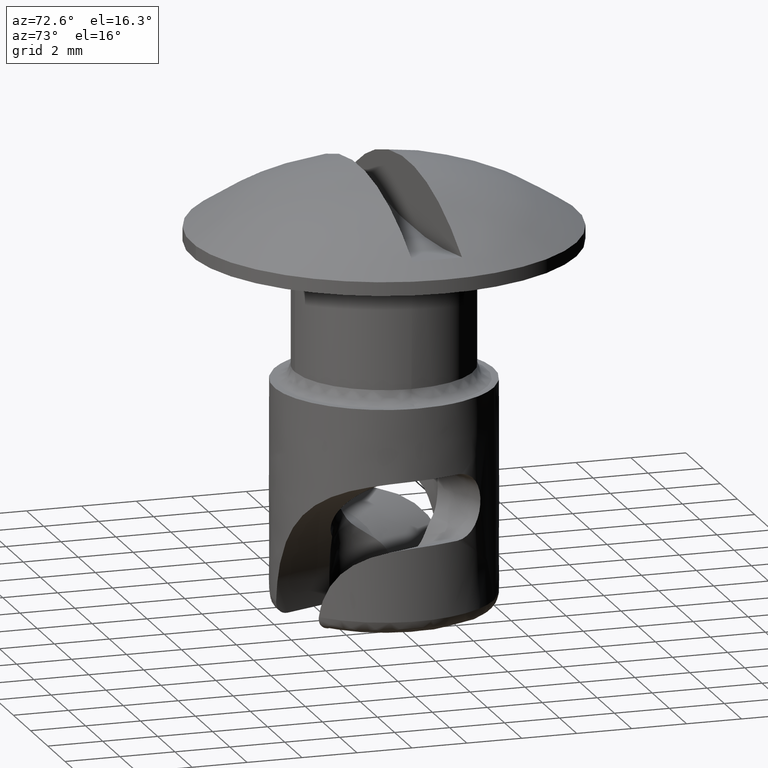
[diagram: clean part render]
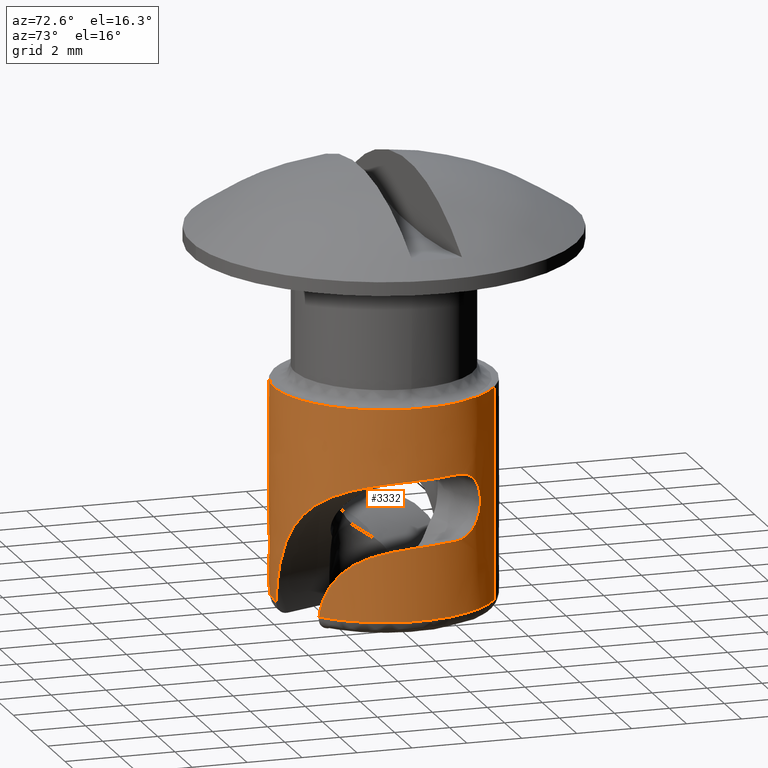
[diagram: same view with one face highlighted and labeled with its STEP entity id]
A machine part, auxiliary view. The second image highlights one B-rep face of the part: STEP entity #3332.
In plain terms, the highlighted face is a freeform B-spline surface patch.
Its self-contained STEP definition (entity closure, byte-faithful):
#891=CARTESIAN_POINT('',(4.0,0.0,-4.999992000000230));
#892=VERTEX_POINT('',#891);
#893=CARTESIAN_POINT('',(2.259197574240169,3.300912952585230,-4.999992000000231));
#894=VERTEX_POINT('',#893);
#895=CARTESIAN_POINT('',(4.0,0.0,-4.999992000000230));
#896=CARTESIAN_POINT('',(3.999999999999916,2.109479953897067,-4.999992000000231));
#897=CARTESIAN_POINT('',(2.259197574240169,3.300912952585230,-4.999992000000231));
#905=(BOUNDED_CURVE()B_SPLINE_CURVE(2,(#895,#896,#897),.UNSPECIFIED.,.F.,.U.)B_SPLINE_CURVE_WITH_KNOTS((3,3),(0.0,0.153025890299699),.UNSPECIFIED.)CURVE()GEOMETRIC_REPRESENTATION_ITEM()RATIONAL_B_SPLINE_CURVE((1.0,0.820719017713307,0.860915090852421))REPRESENTATION_ITEM(''));
#906=EDGE_CURVE('',#892,#894,#905,.T.);
#925=CARTESIAN_POINT('',(-2.259197574405651,-3.300912952471971,-4.999992000000231));
#926=VERTEX_POINT('',#925);
#940=CARTESIAN_POINT('',(-2.259197574405651,-3.300912952471971,-4.999992000000231));
#941=CARTESIAN_POINT('',(-1.237761682196489,-3.999999999999774,-4.999992000000232));
#942=CARTESIAN_POINT('',(1.295531E-013,-3.999999999999812,-4.999992000000232));
#943=CARTESIAN_POINT('',(4.000000000000044,-3.999999999999936,-4.999992000000232));
#944=CARTESIAN_POINT('',(4.0,0.0,-4.999992000000230));
#952=(BOUNDED_CURVE()B_SPLINE_CURVE(2,(#940,#941,#942,#943,#944),.UNSPECIFIED.,.F.,.U.)B_SPLINE_CURVE_WITH_KNOTS((3,2,3),(0.653025890292069,0.750000000000000,1.0),.UNSPECIFIED.)CURVE()GEOMETRIC_REPRESENTATION_ITEM()RATIONAL_B_SPLINE_CURVE((0.860915090848412,0.886387763464301,1.0,0.707106781186548,1.0))REPRESENTATION_ITEM(''));
#953=EDGE_CURVE('',#926,#892,#952,.T.);
#1429=CARTESIAN_POINT('',(3.708735643719140,1.498425815652672,-10.000000000003000));
#1430=VERTEX_POINT('',#1429);
#2134=CARTESIAN_POINT('',(2.468781606039280,-3.147239644781140,-12.699992000000160));
#2135=VERTEX_POINT('',#2134);
#2136=CARTESIAN_POINT('',(3.708735643719140,1.498425815652672,-10.000000000003000));
#2137=CARTESIAN_POINT('',(3.810090958870764,1.247562498924028,-9.999999999999959));
#2138=CARTESIAN_POINT('',(3.884534013940237,0.990773260347813,-10.001989005608980));
#2139=CARTESIAN_POINT('',(3.957431423748062,0.597114365973022,-10.010854007396761));
#2140=CARTESIAN_POINT('',(3.975219266481579,0.464472409151723,-10.014852633452950));
#2141=CARTESIAN_POINT('',(3.991888873922461,0.263341844608409,-10.023411577499710));
#2142=CARTESIAN_POINT('',(3.995774987931119,0.195736937058382,-10.026708973333671));
#2143=CARTESIAN_POINT('',(4.000098380150634,0.061185388952164,-10.034313639172019));
#2144=CARTESIAN_POINT('',(4.000552922773697,-0.005834224472927,-10.038621180587270));
#2145=CARTESIAN_POINT('',(3.994494771487647,-0.339610273644319,-10.063199871098769));
#2146=CARTESIAN_POINT('',(3.963160964590875,-0.602465402867068,-10.092231149312370));
#2147=CARTESIAN_POINT('',(3.892244392910703,-0.924545387156610,-10.151712658925280));
#2148=CARTESIAN_POINT('',(3.876463512499087,-0.988632693985074,-10.164793391147111));
#2149=CARTESIAN_POINT('',(3.841703696563864,-1.116098864420396,-10.193729502408390));
#2150=CARTESIAN_POINT('',(3.822759539488335,-1.179300871714242,-10.209558206818841));
#2151=CARTESIAN_POINT('',(3.762135803825180,-1.365026873242748,-10.261026305331640));
#2152=CARTESIAN_POINT('',(3.716439603513253,-1.484531998927820,-10.300822789177570));
#2153=CARTESIAN_POINT('',(3.616038741455106,-1.714649352695221,-10.393747744094350));
#2154=CARTESIAN_POINT('',(3.561327725681835,-1.825262215269176,-10.446867744072110));
#2155=CARTESIAN_POINT('',(3.473709976626768,-1.984187070145883,-10.538682419504839));
#2156=CARTESIAN_POINT('',(3.443778442466749,-2.035621141561661,-10.571116458527420));
#2157=CARTESIAN_POINT('',(3.383315620142910,-2.134605070561877,-10.639214097439520));
#2158=CARTESIAN_POINT('',(3.352704786899967,-2.182299978619820,-10.674960163162730));
#2159=CARTESIAN_POINT('',(3.260219866616383,-2.320176019284362,-10.787463364764999));
#2160=CARTESIAN_POINT('',(3.197691955991919,-2.405156493261610,-10.869475532748540));
#2161=CARTESIAN_POINT('',(3.104503275320062,-2.522808418043429,-11.003835034144050));
#2162=CARTESIAN_POINT('',(3.073540876573491,-2.560387302447294,-11.050513885296350));
#2163=CARTESIAN_POINT('',(3.012145538220081,-2.632340387389576,-11.147830150644291));
#2164=CARTESIAN_POINT('',(2.982023100929445,-2.666350250954843,-11.197984765034001));
#2165=CARTESIAN_POINT('',(2.894146360982890,-2.762509471872198,-11.352250067694611));
#2166=CARTESIAN_POINT('',(2.838713494502881,-2.819012463386957,-11.460418501357649));
#2167=CARTESIAN_POINT('',(2.761690907903704,-2.893846008749102,-11.630600571960370));
#2168=CARTESIAN_POINT('',(2.737037230131211,-2.917130702887337,-11.688652361414199));
#2169=CARTESIAN_POINT('',(2.690008017475713,-2.960554205342078,-11.807433704027311));
#2170=CARTESIAN_POINT('',(2.667561133932267,-2.980754471376142,-11.868388787778670));
#2171=CARTESIAN_POINT('',(2.604753430960586,-3.036178198241654,-12.053081659258231));
#2172=CARTESIAN_POINT('',(2.568768672016629,-3.066416776179763,-12.178873449431290));
#2173=CARTESIAN_POINT('',(2.509227545560911,-3.115326862492778,-12.435575624183050));
#2174=CARTESIAN_POINT('',(2.485666534758483,-3.133994640858299,-12.566485656691439));
#2175=CARTESIAN_POINT('',(2.468781606039280,-3.147239644781140,-12.699992000000160));
#2176=B_SPLINE_CURVE_WITH_KNOTS('',3,(#2136,#2137,#2138,#2139,#2140,#2141,#2142,#2143,#2144,#2145,#2146,#2147,#2148,#2149,#2150,#2151,#2152,#2153,#2154,#2155,#2156,#2157,#2158,#2159,#2160,#2161,#2162,#2163,#2164,#2165,#2166,#2167,#2168,#2169,#2170,#2171,#2172,#2173,#2174,#2175),.UNSPECIFIED.,.F.,.U.,(4,2,2,2,2,2,2,2,2,2,2,2,2,2,2,2,2,2,2,4),(0.0,0.125000000000000,0.187500000000000,0.218750000000000,0.250000000000000,0.375000000000001,0.406250000000000,0.437500000000000,0.500000000000001,0.562500000000001,0.593750000000001,0.625000000000001,0.687500000000001,0.718750000000001,0.750000000000002,0.812500000000001,0.843750000000001,0.875000000000001,0.937500000000000,1.0),.UNSPECIFIED.);
#2177=EDGE_CURVE('',#1430,#2135,#2176,.T.);
#2754=CARTESIAN_POINT('',(3.708735643717875,1.498425815653404,-7.600000000000000));
#2755=VERTEX_POINT('',#2754);
#2756=CARTESIAN_POINT('',(3.708735643719140,1.498425815652672,-10.000000000003000));
#2757=CARTESIAN_POINT('',(3.693980332764582,1.534946507632162,-9.999999999999545));
#2758=CARTESIAN_POINT('',(3.678605449735882,1.571443497108849,-9.998060004204000));
#2759=CARTESIAN_POINT('',(3.646725625274037,1.644069625472710,-9.990184061265461));
#2760=CARTESIAN_POINT('',(3.630460214853705,1.679657963704901,-9.984312736830516));
#2761=CARTESIAN_POINT('',(3.580785661125524,1.784360679842895,-9.961115904495424));
#2762=CARTESIAN_POINT('',(3.546492992665188,1.851425869439605,-9.938261317992376));
#2763=CARTESIAN_POINT('',(3.493745136881018,1.948099713255431,-9.892742532923032));
#2764=CARTESIAN_POINT('',(3.476008292158629,1.979540920869979,-9.875716160736429));
#2765=CARTESIAN_POINT('',(3.440969522412821,2.039839368769486,-9.838640247142719));
#2766=CARTESIAN_POINT('',(3.406185018755823,2.097888119400641,-9.798390899087702));
#2767=CARTESIAN_POINT('',(3.372144950699159,2.151647418722550,-9.751882076158708));
#2768=CARTESIAN_POINT('',(3.338619872972860,2.203307860198963,-9.702189254878659));
#2769=CARTESIAN_POINT('',(3.322039984462922,2.228194726983983,-9.675607884540233));
#2770=CARTESIAN_POINT('',(3.274234720697460,2.298389129948204,-9.592494346216469));
#2771=CARTESIAN_POINT('',(3.244711567903310,2.339627016936406,-9.532392079923566));
#2772=CARTESIAN_POINT('',(3.191487183096997,2.411724963050376,-9.402758036293337));
#2773=CARTESIAN_POINT('',(3.167665745887051,2.442717719060330,-9.332510609649090));
#2774=CARTESIAN_POINT('',(3.129122526322118,2.491900549370058,-9.187930240633563));
#2775=CARTESIAN_POINT('',(3.114111099204581,2.510493086913676,-9.113106655318473));
#2776=CARTESIAN_POINT('',(3.098753066007345,2.529386349564358,-8.996907638080797));
#2777=CARTESIAN_POINT('',(3.094832176459688,2.534172527735672,-8.957324867691805));
#2778=CARTESIAN_POINT('',(3.089663145777002,2.540472051885772,-8.878589447126707));
#2779=CARTESIAN_POINT('',(3.087096383195576,2.543585588401966,-8.799927749917881));
#2780=CARTESIAN_POINT('',(3.089666338298439,2.540468136988272,-8.721410773289573));
#2781=CARTESIAN_POINT('',(3.094809839269400,2.534199774254679,-8.642966707535637));
#2782=CARTESIAN_POINT('',(3.098690236980813,2.529463423918883,-8.603621911833006));
#2783=CARTESIAN_POINT('',(3.114110045358946,2.510494814966794,-8.486793612842371));
#2784=CARTESIAN_POINT('',(3.129186956931753,2.491820083517486,-8.411773137369801));
#2785=CARTESIAN_POINT('',(3.158125759642797,2.454890276847694,-8.303302705170689));
#2786=CARTESIAN_POINT('',(3.168831734382461,2.441081575336332,-8.267827589531647));
#2787=CARTESIAN_POINT('',(3.192281513021277,2.410334532777311,-8.198260596250798));
#2788=CARTESIAN_POINT('',(3.204919492123242,2.393531891863615,-8.164503663049294));
#2789=CARTESIAN_POINT('',(3.244911173185314,2.339351822899808,-8.067166908508639));
#2790=CARTESIAN_POINT('',(3.274469571402577,2.298055152406835,-8.007052296822421));
#2791=CARTESIAN_POINT('',(3.322288534992269,2.227824275993412,-7.923982773170082));
#2792=CARTESIAN_POINT('',(3.338875886487748,2.202920023704376,-7.897411074326966));
#2793=CARTESIAN_POINT('',(3.372406018221561,2.151238356032557,-7.847751460844281));
#2794=CARTESIAN_POINT('',(3.389419155863508,2.124361892889728,-7.824526641371428));
#2795=CARTESIAN_POINT('',(3.440987162825300,2.040566100235266,-7.759571072650771));
#2796=CARTESIAN_POINT('',(3.476123070176079,1.980401778936991,-7.722456112077880));
#2797=CARTESIAN_POINT('',(3.546660964345536,1.851112856905231,-7.661602071041023));
#2798=CARTESIAN_POINT('',(3.580949678573107,1.784022479467329,-7.638797553949281));
#2799=CARTESIAN_POINT('',(3.630485784679586,1.679600300423470,-7.615680313536404));
#2800=CARTESIAN_POINT('',(3.646682940823901,1.644158857251184,-7.609836626266411));
#2801=CARTESIAN_POINT('',(3.678386688849846,1.571949803924034,-7.601983981890302));
#2802=CARTESIAN_POINT('',(3.693922479155233,1.535089700403719,-7.599999999998460));
#2803=CARTESIAN_POINT('',(3.708735643717875,1.498425815653404,-7.600000000000000));
#2804=B_SPLINE_CURVE_WITH_KNOTS('',3,(#2756,#2757,#2758,#2759,#2760,#2761,#2762,#2763,#2764,#2765,#2766,#2767,#2768,#2769,#2770,#2771,#2772,#2773,#2774,#2775,#2776,#2777,#2778,#2779,#2780,#2781,#2782,#2783,#2784,#2785,#2786,#2787,#2788,#2789,#2790,#2791,#2792,#2793,#2794,#2795,#2796,#2797,#2798,#2799,#2800,#2801,#2802,#2803),.UNSPECIFIED.,.F.,.U.,(4,2,2,2,2,1,2,2,2,2,2,2,1,2,2,2,2,2,2,2,2,2,2,2,4),(0.0,0.031250000000000,0.062500000000001,0.125000000000002,0.156250000000002,0.187500000000003,0.218750000000003,0.250000000000004,0.312500000000004,0.375000000000004,0.437500000000004,0.468750000000004,0.500000000000003,0.531250000000002,0.562500000000002,0.625000000000002,0.656250000000002,0.687500000000002,0.750000000000002,0.781250000000002,0.812500000000002,0.875000000000001,0.937500000000001,0.968750000000000,1.0),.UNSPECIFIED.);
#2805=EDGE_CURVE('',#1430,#2755,#2804,.T.);
#2936=CARTESIAN_POINT('',(2.259198848327368,3.300912080579591,-12.699992000000160));
#2937=VERTEX_POINT('',#2936);
#2951=CARTESIAN_POINT('',(2.468781606039278,-3.147239644781141,-12.699992000000160));
#2952=CARTESIAN_POINT('',(4.772995447202774,-1.339750737198722,-12.699992000000160));
#2953=CARTESIAN_POINT('',(3.745950619800008,1.402802179218416,-12.699992000000160));
#2954=CARTESIAN_POINT('',(3.302552379646656,2.586823659314840,-12.699992000000160));
#2955=CARTESIAN_POINT('',(2.259198848327369,3.300912080579591,-12.699992000000160));
#2963=(BOUNDED_CURVE()B_SPLINE_CURVE(2,(#2951,#2952,#2953,#2954,#2955),.UNSPECIFIED.,.F.,.U.)B_SPLINE_CURVE_WITH_KNOTS((3,2,3),(0.0,0.500000000000000,0.742473774957260),.UNSPECIFIED.)CURVE()GEOMETRIC_REPRESENTATION_ITEM()RATIONAL_B_SPLINE_CURVE((1.0,0.806864675671208,1.0,0.906339497664806,0.903519857592043))REPRESENTATION_ITEM(''));
#2964=EDGE_CURVE('',#2135,#2937,#2963,.T.);
#3222=CARTESIAN_POINT('',(-2.259198850649106,-3.300912078990555,-12.892492000000161));
#3223=CARTESIAN_POINT('',(1.041713228341449,-5.560110929639662,-12.892492000000159));
#3224=CARTESIAN_POINT('',(3.300912078990555,-2.259198850649106,-12.892492000000161));
#3225=CARTESIAN_POINT('',(5.560110929639662,1.041713228341449,-12.892492000000159));
#3226=CARTESIAN_POINT('',(2.259198850649106,3.300912078990555,-12.892492000000161));
#3227=CARTESIAN_POINT('',(-2.259198850649106,-3.300912078990555,-4.802679500000230));
#3228=CARTESIAN_POINT('',(1.041713228341449,-5.560110929639662,-4.802679500000229));
#3229=CARTESIAN_POINT('',(3.300912078990555,-2.259198850649106,-4.802679500000230));
#3230=CARTESIAN_POINT('',(5.560110929639662,1.041713228341449,-4.802679500000229));
#3231=CARTESIAN_POINT('',(2.259198850649106,3.300912078990555,-4.802679500000230));
#3239=(BOUNDED_SURFACE()B_SPLINE_SURFACE(2,1,((#3222,#3227),(#3223,#3228),(#3224,#3229),(#3225,#3230),(#3226,#3231)),.UNSPECIFIED.,.F.,.F.,.U.)B_SPLINE_SURFACE_WITH_KNOTS((3,2,3),(2,2),(0.0,6.627416997969519,13.254833995939039),(0.0,8.089812499999930),.UNSPECIFIED.)GEOMETRIC_REPRESENTATION_ITEM()RATIONAL_B_SPLINE_SURFACE(((1.0,1.0),(0.707106781186548,0.707106781186548),(1.0,1.0),(0.707106781186548,0.707106781186548),(1.0,1.0)))REPRESENTATION_ITEM('')SURFACE());
#3240=ORIENTED_EDGE('',*,*,#953,.F.);
#3241=CARTESIAN_POINT('',(-2.259198863893974,-3.300912069925549,-12.699992000000160));
#3242=VERTEX_POINT('',#3241);
#3243=CARTESIAN_POINT('',(-2.259198863893974,-3.300912069925549,-12.699992000000160));
#3244=CARTESIAN_POINT('',(-2.259197574405651,-3.300912952471971,-4.999992000000231));
#3245=QUASI_UNIFORM_CURVE('',1,(#3243,#3244),.UNSPECIFIED.,.F.,.U.);
#3246=EDGE_CURVE('',#3242,#926,#3245,.T.);
#3247=ORIENTED_EDGE('',*,*,#3246,.F.);
#3248=CARTESIAN_POINT('',(0.205768854712659,-3.994703891207740,-12.699992000000160));
#3249=VERTEX_POINT('',#3248);
#3250=CARTESIAN_POINT('',(-2.259198863893975,-3.300912069925549,-12.699992000000162));
#3251=CARTESIAN_POINT('',(-1.143920628626017,-4.064226956438076,-12.699992000000160));
#3252=CARTESIAN_POINT('',(0.205768854712658,-3.994703891207737,-12.699992000000160));
#3260=(BOUNDED_CURVE()B_SPLINE_CURVE(2,(#3250,#3251,#3252),.UNSPECIFIED.,.F.,.U.)B_SPLINE_CURVE_WITH_KNOTS((3,3),(0.742473773154059,1.0),.UNSPECIFIED.)CURVE()GEOMETRIC_REPRESENTATION_ITEM()RATIONAL_B_SPLINE_CURVE((0.903519857633981,0.900525177309878,1.0))REPRESENTATION_ITEM(''));
#3261=EDGE_CURVE('',#3242,#3249,#3260,.T.);
#3262=ORIENTED_EDGE('',*,*,#3261,.T.);
#3263=CARTESIAN_POINT('',(3.708735643717875,1.498425815653404,-7.600000000000000));
#3264=CARTESIAN_POINT('',(3.789816242015302,1.297744205807735,-7.599999999999970));
#3265=CARTESIAN_POINT('',(3.853610974872032,1.093263577412488,-7.600772875729547));
#3266=CARTESIAN_POINT('',(3.948059474699816,0.677029674079290,-7.604736595366661));
#3267=CARTESIAN_POINT('',(3.978711172169416,0.465275843627494,-7.607918917681144));
#3268=CARTESIAN_POINT('',(3.995564957132692,0.195894578718415,-7.615217662911019));
#3269=CARTESIAN_POINT('',(3.997848564085063,0.141795779559010,-7.616849857873356));
#3270=CARTESIAN_POINT('',(4.000216753743072,0.034133671513432,-7.620487619688186));
#3271=CARTESIAN_POINT('',(4.000310720402404,-0.019555583718766,-7.622496360478704));
#3272=CARTESIAN_POINT('',(3.997374375231631,-0.180197743397610,-7.629181404475868));
#3273=CARTESIAN_POINT('',(3.991130562209952,-0.286725832207317,-7.634513265878188));
#3274=CARTESIAN_POINT('',(3.959775703180690,-0.604579068728949,-7.653959452422089));
#3275=CARTESIAN_POINT('',(3.922112906822729,-0.814186815777883,-7.671451332132992));
#3276=CARTESIAN_POINT('',(3.853761044358152,-1.073029672022521,-7.702641931695323));
#3277=CARTESIAN_POINT('',(3.838978122430332,-1.124771750286358,-7.709371911327249));
#3278=CARTESIAN_POINT('',(3.807509609817085,-1.227083976707175,-7.723770845920249));
#3279=CARTESIAN_POINT('',(3.757456182568843,-1.378856449089958,-7.746776668644611));
#3280=CARTESIAN_POINT('',(3.699122988859857,-1.525589463259218,-7.774337358302792));
#3281=CARTESIAN_POINT('',(3.571982284881069,-1.812368324864488,-7.836501287930684));
#3282=CARTESIAN_POINT('',(3.473289894623778,-1.994666556306956,-7.887282724575035));
#3283=CARTESIAN_POINT('',(3.333735905731934,-2.211076038045203,-7.966273291350484));
#3284=CARTESIAN_POINT('',(3.304936856167119,-2.253889410775154,-7.982896306513405));
#3285=CARTESIAN_POINT('',(3.246122206245276,-2.337801471763046,-8.017586295371046));
#3286=CARTESIAN_POINT('',(3.156252307149330,-2.460874529570284,-8.071677189101809));
#3287=CARTESIAN_POINT('',(3.061826482051081,-2.575801728123307,-8.132117061349236));
#3288=CARTESIAN_POINT('',(2.867818098297072,-2.795310921927876,-8.261970828628712));
#3289=CARTESIAN_POINT('',(2.731615405252652,-2.927880516877460,-8.360484840940163));
#3290=CARTESIAN_POINT('',(2.555468277276900,-3.077615931860113,-8.500482646460059));
#3291=CARTESIAN_POINT('',(2.519980797999549,-3.106724907485757,-8.529300169703664));
#3292=CARTESIAN_POINT('',(2.449137228549457,-3.162873647304286,-8.588113109815474));
#3293=CARTESIAN_POINT('',(2.342830668632973,-3.244196303757057,-8.678286934049607));
#3294=CARTESIAN_POINT('',(2.236691472767790,-3.317262990057821,-8.774323978974886));
#3295=CARTESIAN_POINT('',(2.095796109974275,-3.408028925196530,-8.907615685544689));
#3296=CARTESIAN_POINT('',(2.025659446669304,-3.450082715466893,-8.976882592651826));
#3297=CARTESIAN_POINT('',(1.921257087853521,-3.508612679782932,-9.084763703480409));
#3298=CARTESIAN_POINT('',(1.886589940101574,-3.527363601466302,-9.121387812844381));
#3299=CARTESIAN_POINT('',(1.817578161753505,-3.563414823586853,-9.195975244005739));
#3300=CARTESIAN_POINT('',(1.783169554541134,-3.580745444036078,-9.234012034142028));
#3301=CARTESIAN_POINT('',(1.613033766418871,-3.663472067865985,-9.426479837185491));
#3302=CARTESIAN_POINT('',(1.482986987825049,-3.717243031302735,-9.587707480761207));
#3303=CARTESIAN_POINT('',(1.236698357886627,-3.806274206021905,-9.924298447189083));
#3304=CARTESIAN_POINT('',(1.120446684108449,-3.841502833200432,-10.099662647876050));
#3305=CARTESIAN_POINT('',(0.957908198356716,-3.884011853853579,-10.373477761067990));
#3306=CARTESIAN_POINT('',(0.905705251657000,-3.896450403323480,-10.466548770707400));
#3307=CARTESIAN_POINT('',(0.805555123776746,-3.918380876203309,-10.656374165562120));
#3308=CARTESIAN_POINT('',(0.757944234396753,-3.927799075888550,-10.752505848182309));
#3309=CARTESIAN_POINT('',(0.623151315216673,-3.952217429541130,-11.043543537596660));
#3310=CARTESIAN_POINT('',(0.543759445167942,-3.963466434363898,-11.241513917056290));
#3311=CARTESIAN_POINT('',(0.407032704488644,-3.979832268829340,-11.645542024260861));
#3312=CARTESIAN_POINT('',(0.349696208037411,-3.984944904570063,-11.851599389006880));
#3313=CARTESIAN_POINT('',(0.281593372982556,-3.990140787602113,-12.167123652098409));
#3314=CARTESIAN_POINT('',(0.261884957381903,-3.991451814718027,-12.273468557289350));
#3315=CARTESIAN_POINT('',(0.229003439772380,-3.993473268308074,-12.486270620101600));
#3316=CARTESIAN_POINT('',(0.215769063158924,-3.994188776321901,-12.592977385333400));
#3317=CARTESIAN_POINT('',(0.205768854712659,-3.994703891207740,-12.699992000000160));
#3318=B_SPLINE_CURVE_WITH_KNOTS('',3,(#3263,#3264,#3265,#3266,#3267,#3268,#3269,#3270,#3271,#3272,#3273,#3274,#3275,#3276,#3277,#3278,#3279,#3280,#3281,#3282,#3283,#3284,#3285,#3286,#3287,#3288,#3289,#3290,#3291,#3292,#3293,#3294,#3295,#3296,#3297,#3298,#3299,#3300,#3301,#3302,#3303,#3304,#3305,#3306,#3307,#3308,#3309,#3310,#3311,#3312,#3313,#3314,#3315,#3316,#3317),.UNSPECIFIED.,.F.,.U.,(4,2,2,2,2,2,2,2,1,2,2,2,1,2,2,2,1,2,2,2,2,2,2,2,2,2,2,2,4),(0.0,0.062500000000000,0.125000000000001,0.140625000000001,0.156250000000001,0.187500000000001,0.250000000000001,0.265625000000001,0.281250000000001,0.312500000000001,0.375000000000001,0.390625000000001,0.406250000000002,0.437500000000002,0.500000000000001,0.515625000000001,0.531250000000001,0.562500000000001,0.593750000000001,0.609375000000001,0.625000000000001,0.687500000000001,0.750000000000001,0.781250000000001,0.812500000000001,0.875000000000001,0.937500000000000,0.968750000000000,1.0),.UNSPECIFIED.);
#3319=EDGE_CURVE('',#2755,#3249,#3318,.T.);
#3320=ORIENTED_EDGE('',*,*,#3319,.F.);
#3321=ORIENTED_EDGE('',*,*,#2805,.F.);
#3322=ORIENTED_EDGE('',*,*,#2177,.T.);
#3323=ORIENTED_EDGE('',*,*,#2964,.T.);
#3324=CARTESIAN_POINT('',(2.259198848327368,3.300912080579591,-12.699992000000160));
#3325=CARTESIAN_POINT('',(2.259197574240169,3.300912952585230,-4.999992000000231));
#3326=QUASI_UNIFORM_CURVE('',1,(#3324,#3325),.UNSPECIFIED.,.F.,.U.);
#3327=EDGE_CURVE('',#2937,#894,#3326,.T.);
#3328=ORIENTED_EDGE('',*,*,#3327,.T.);
#3329=ORIENTED_EDGE('',*,*,#906,.F.);
#3330=EDGE_LOOP('',(#3240,#3247,#3262,#3320,#3321,#3322,#3323,#3328,#3329));
#3331=FACE_OUTER_BOUND('',#3330,.T.);
#3332=ADVANCED_FACE('',(#3331),#3239,.T.);